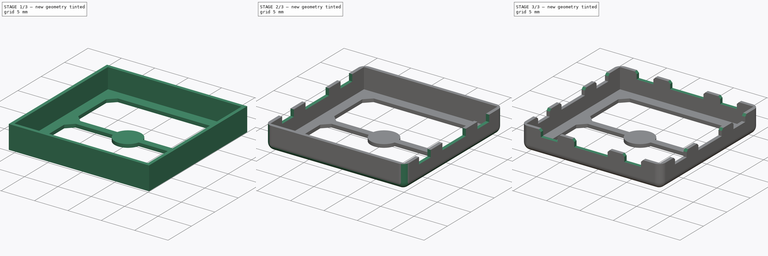
[diagram: build sequence overview — one tinted view per stage of 3, left to right]
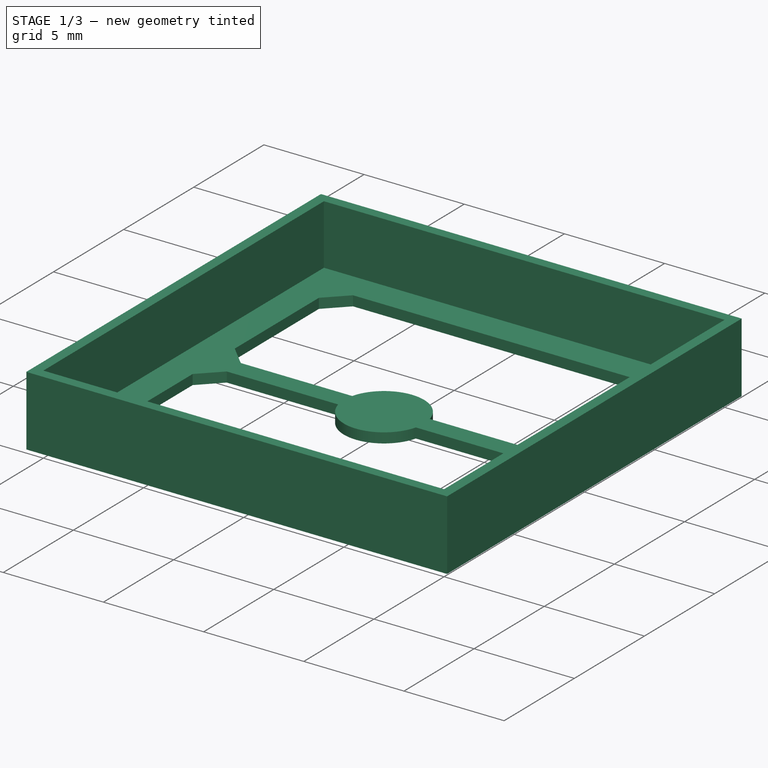
[diagram: stage 1 of 3 — iso view after this stage's code; geometry added in this stage tinted green]
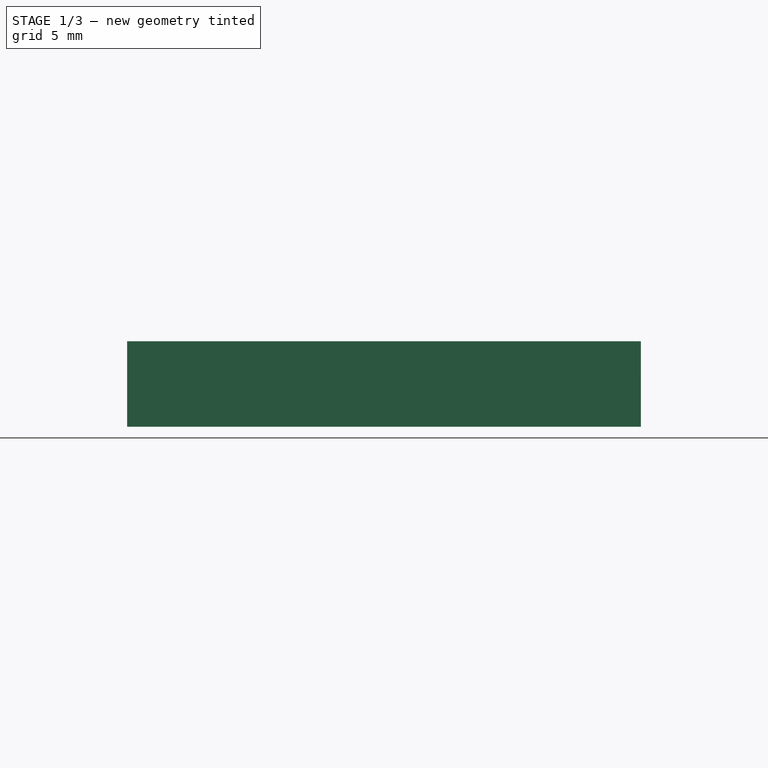
[diagram: stage 1 of 3 — front view after this stage's code; geometry added in this stage tinted green]
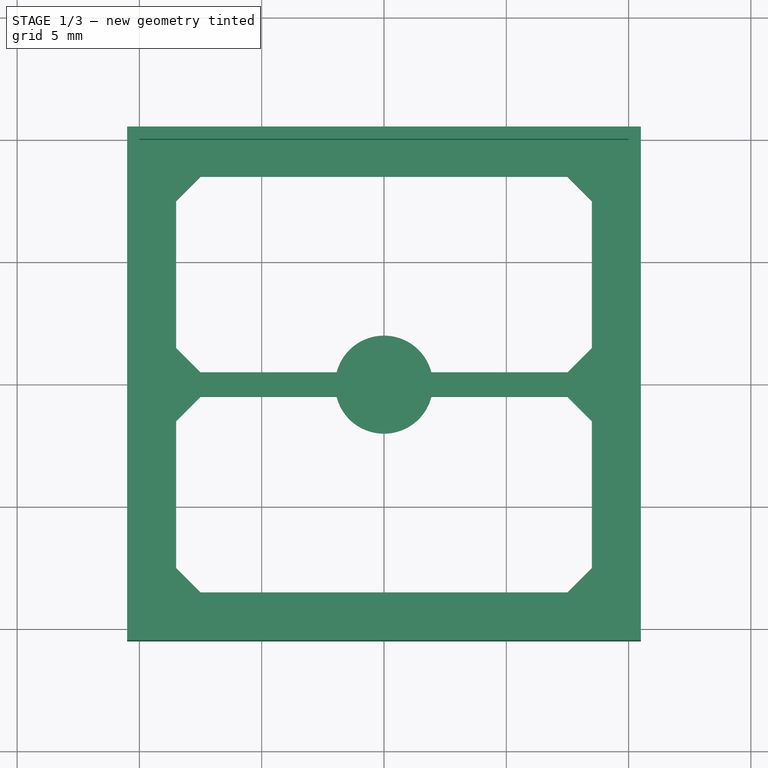
[diagram: stage 1 of 3 — top view after this stage's code; geometry added in this stage tinted green]
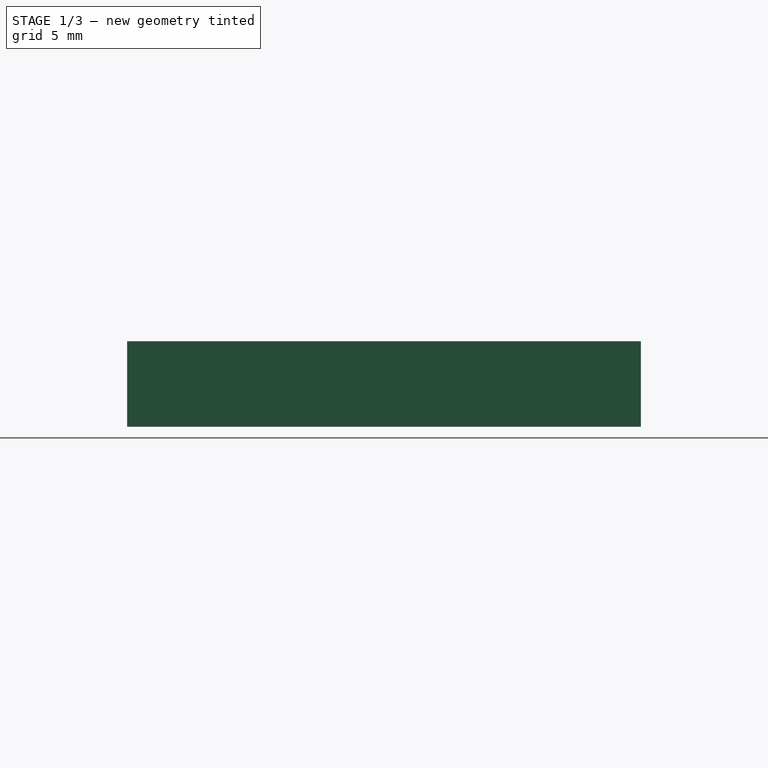
[diagram: stage 1 of 3 — right view after this stage's code; geometry added in this stage tinted green]
FCSTD DOCUMENT  (FreeCAD 0.18R4 (GitTag))
Label: WE_36103205
License: All rights reserved
LicenseURL: http://en.wikipedia.org/wiki/All_rights_reserved
objects: Sketcher::SketchObject×4, PartDesign::Pocket×3, PartDesign::Pad×1, PartDesign::Fillet×1, PartDesign::Chamfer×1, PartDesign::Body×1
note: 15 computed .brp shape members not serialized (recipe doc carries the construction recipe); baked Part::Feature solids carry a one-line shape summary decoded from their .brp

FEATURE [Sketcher::SketchObject] Sketch  label="blindage"
  MapMode = 5
  Support = -> [XY_Plane]
  sketch-geometry (24):
    g0: LineSegment StartX=-10.5 StartY=10.5 StartZ=0 EndX=10.5 EndY=10.5 EndZ=0
    g1: LineSegment StartX=10.5 StartY=10.5 StartZ=0 EndX=10.5 EndY=-10.5 EndZ=0
    g2: LineSegment StartX=10.5 StartY=-10.5 StartZ=0 EndX=-10.5 EndY=-10.5 EndZ=0
    g3: LineSegment StartX=-10.5 StartY=-10.5 StartZ=0 EndX=-10.5 EndY=10.5 EndZ=0
    g4: LineSegment StartX=-8.5 StartY=7.5 StartZ=0 EndX=-7.5 EndY=8.5 EndZ=0
    g5: LineSegment StartX=-8.5 StartY=7.5 StartZ=0 EndX=-8.5 EndY=1.5 EndZ=0
    g6: LineSegment StartX=-8.5 StartY=1.5 StartZ=0 EndX=-7.5 EndY=0.5 EndZ=0
    g7: LineSegment StartX=-7.5 StartY=0.5 StartZ=0 EndX=-1.93649 EndY=0.5 EndZ=0
    g8: LineSegment StartX=-7.5 StartY=8.5 StartZ=0 EndX=7.5 EndY=8.5 EndZ=0
    g9: LineSegment StartX=7.5 StartY=8.5 StartZ=0 EndX=8.5 EndY=7.5 EndZ=0
    g10: LineSegment StartX=8.5 StartY=7.5 StartZ=0 EndX=8.5 EndY=1.5 EndZ=0
    g11: LineSegment StartX=8.5 StartY=1.5 StartZ=0 EndX=7.5 EndY=0.5 EndZ=0
    g12: LineSegment StartX=7.5 StartY=0.5 StartZ=0 EndX=1.93649 EndY=0.5 EndZ=0
    g13: LineSegment StartX=-8.5 StartY=-7.5 StartZ=0 EndX=-7.5 EndY=-8.5 EndZ=0
    g14: LineSegment StartX=-8.5 StartY=-7.5 StartZ=0 EndX=-8.5 EndY=-1.5 EndZ=0
    g15: LineSegment StartX=-8.5 StartY=-1.5 StartZ=0 EndX=-7.5 EndY=-0.5 EndZ=0
    g16: LineSegment StartX=-7.5 StartY=-0.5 StartZ=0 EndX=-1.93649 EndY=-0.5 EndZ=0
    g17: LineSegment StartX=-7.5 StartY=-8.5 StartZ=0 EndX=7.5 EndY=-8.5 EndZ=0
    g18: LineSegment StartX=7.5 StartY=-8.5 StartZ=0 EndX=8.5 EndY=-7.5 EndZ=0
    g19: LineSegment StartX=8.5 StartY=-7.5 StartZ=0 EndX=8.5 EndY=-1.5 EndZ=0
    g20: LineSegment StartX=8.5 StartY=-1.5 StartZ=0 EndX=7.5 EndY=-0.5 EndZ=0
    g21: LineSegment StartX=7.5 StartY=-0.5 StartZ=0 EndX=1.93649 EndY=-0.5 EndZ=0
    g22: ArcOfCircle CenterX=0 CenterY=0 CenterZ=0 NormalX=0 NormalY=0 NormalZ=1 AngleXU=0 Radius=2 StartAngle=0.25268 EndAngle=2.88891
    g23: ArcOfCircle CenterX=0 CenterY=0 CenterZ=0 NormalX=0 NormalY=0 NormalZ=1 AngleXU=0 Radius=2 StartAngle=3.39427 EndAngle=6.03051
  constraints (72):
    c: Coincident(g0,g1)
    c: Coincident(g1,g2)
    c: Coincident(g2,g3)
    c: Coincident(g3,g0)
    c: Horizontal(g0)
    c: Horizontal(g2)
    c: Vertical(g1)
    c: Vertical(g3)
    c: DistanceX(g0,g-1) = 10.5
    c: DistanceY(g-1,g0) = 10.5
    c: DistanceY(g1,g1) = 21
    c: Equal(g1,g0)
    c: Coincident(g4,g5)
    c: Vertical(g5)
    c: Angle(g4,g-2) = 0.785398
    c: Coincident(g5,g6)
    c: Coincident(g6,g7)
    c: Horizontal(g7)
    c: Coincident(g4,g8)
    c: Horizontal(g8)
    c: Coincident(g8,g9)
    c: Coincident(g9,g10)
    c: Coincident(g10,g11)
    c: Coincident(g11,g12)
    c: Horizontal(g12)
    c: DistanceX(g8,g8) = 15
    c: DistanceY(g4,g0) = 2
    c: DistanceY(g-1,g7) = 0.5
    c: DistanceY(g-1,g12) = 0.5
    c: DistanceX(g0,g4) = 2
    c: Vertical(g10)
    c: DistanceX(g10,g0) = 2
    c: Equal(g6,g4)
    c: Equal(g9,g11)
    c: Equal(g4,g9)
    c: Angle(g6) = -0.785398
    c: Angle(g9) = -0.785398
    c: Angle(g11) = -2.35619
    c: Coincident(g13,g14)
    c: Vertical(g14)
    c: Coincident(g14,g15)
    c: Coincident(g15,g16)
    c: Horizontal(g16)
    c: Coincident(g13,g17)
    c: Horizontal(g17)
    c: Coincident(g17,g18)
    c: Coincident(g18,g19)
    c: Coincident(g19,g20)
    c: Coincident(g20,g21)
    c: Horizontal(g21)
    c: Vertical(g19)
    c: Equal(g15,g13)
    c: Equal(g18,g20)
    c: Equal(g13,g18)
    c: Angle(g15) = 0.785398
    c: Angle(g18) = 0.785398
    c: Angle(g20) = 2.35619
    c: DistanceX(g2,g14) = 2
    c: DistanceX(g18,g1) = 2
    c: DistanceY(g1,g17) = 2
    c: Angle(g13) = -0.785398
    c: DistanceX(g17,g17) = 15
    c: DistanceY(g20,g-1) = 0.5
    c: Coincident(g22,g-1)
    c: Coincident(g22,g7)
    c: Coincident(g22,g12)
    c: Coincident(g23,g16)
    c: Coincident(g23,g21)
    c: Equal(g7,g16)
    c: Coincident(g23,g22)
    c: Radius(g22) = 2
    c: Radius(g23) = 2
FEATURE [PartDesign::Pad] Pad
  Length = 3.5
  Length2 = 100
  Profile = -> Sketch
  Type = 0
FEATURE [Sketcher::SketchObject] CopySketch001
  Placement = pos=(0,0,3.5) rot=(0,0,1;0rad)
  sketch-geometry (4):
    g0: LineSegment StartX=-10 StartY=10 StartZ=0 EndX=10 EndY=10 EndZ=0
    g1: LineSegment StartX=10 StartY=10 StartZ=0 EndX=10 EndY=-10 EndZ=0
    g2: LineSegment StartX=10 StartY=-10 StartZ=0 EndX=-10 EndY=-10 EndZ=0
    g3: LineSegment StartX=-10 StartY=-10 StartZ=0 EndX=-10 EndY=10 EndZ=0
  constraints (12):
    c: Coincident(g0,g1)
    c: Coincident(g1,g2)
    c: Coincident(g2,g3)
    c: Coincident(g3,g0)
    c: Horizontal(g0)
    c: Horizontal(g2)
    c: Vertical(g1)
    c: Vertical(g3)
    c: DistanceX(g0,g0) = 20
    c: DistanceY(g3,g3) = 20
    c: DistanceX(g0,g-1) = 10
    c: DistanceY(g-1,g0) = 10
FEATURE [PartDesign::Pocket] Pocket
  BaseFeature = -> Pad
  Length = 3
  Length2 = 100
  Profile = -> CopySketch001
  Type = 0
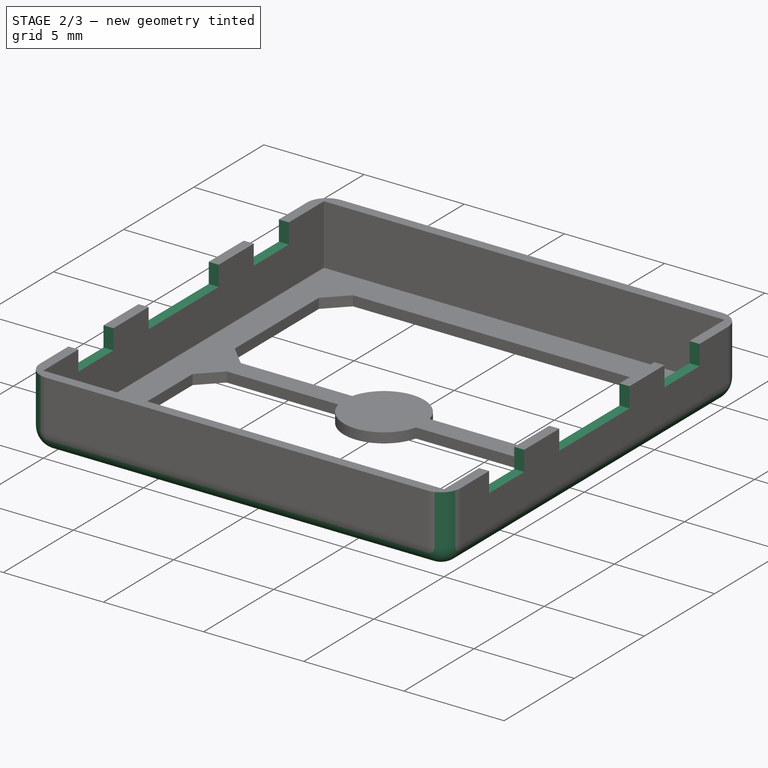
[diagram: stage 2 of 3 — iso view after this stage's code; geometry added in this stage tinted green]
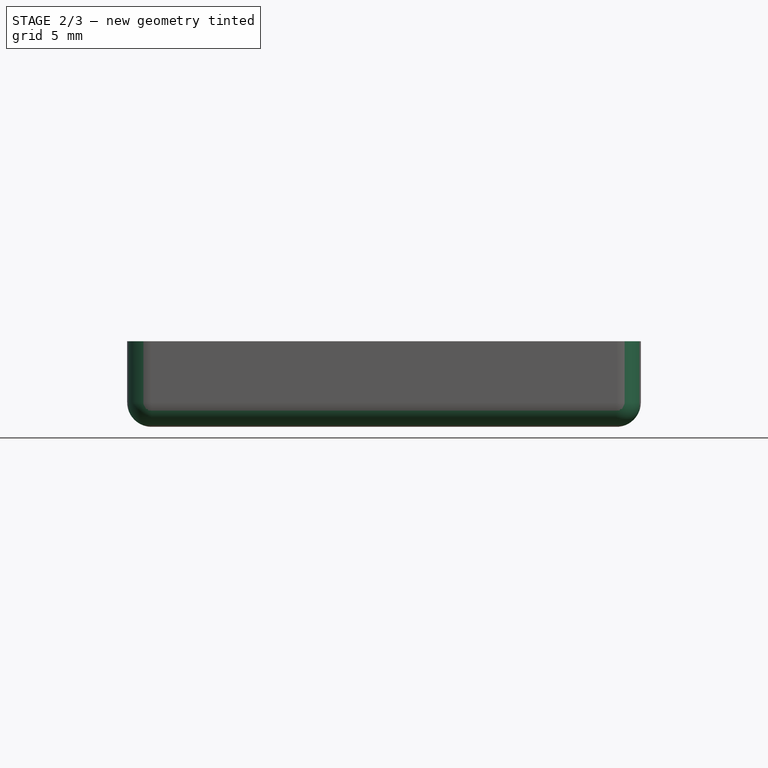
[diagram: stage 2 of 3 — front view after this stage's code; geometry added in this stage tinted green]
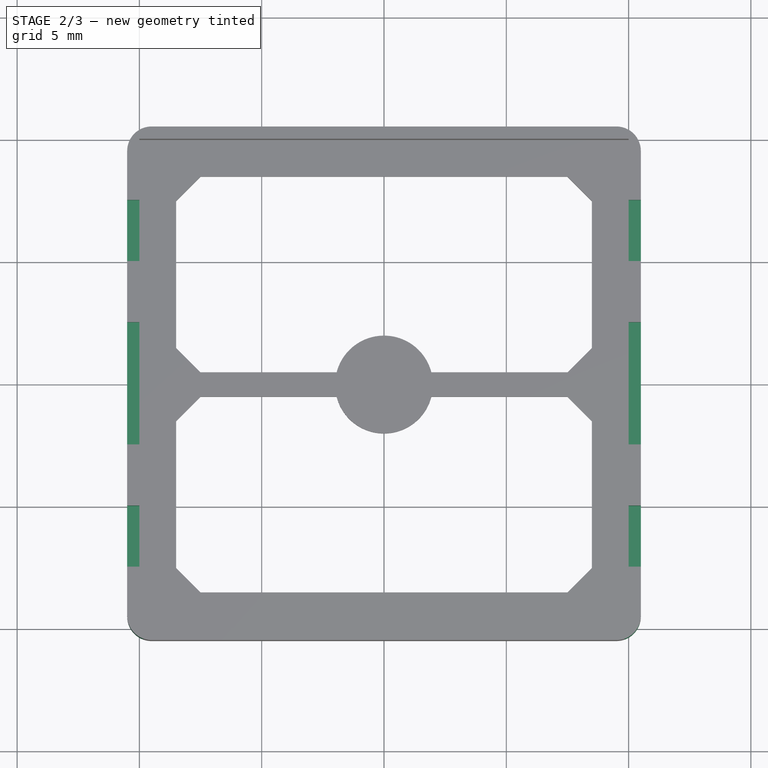
[diagram: stage 2 of 3 — top view after this stage's code; geometry added in this stage tinted green]
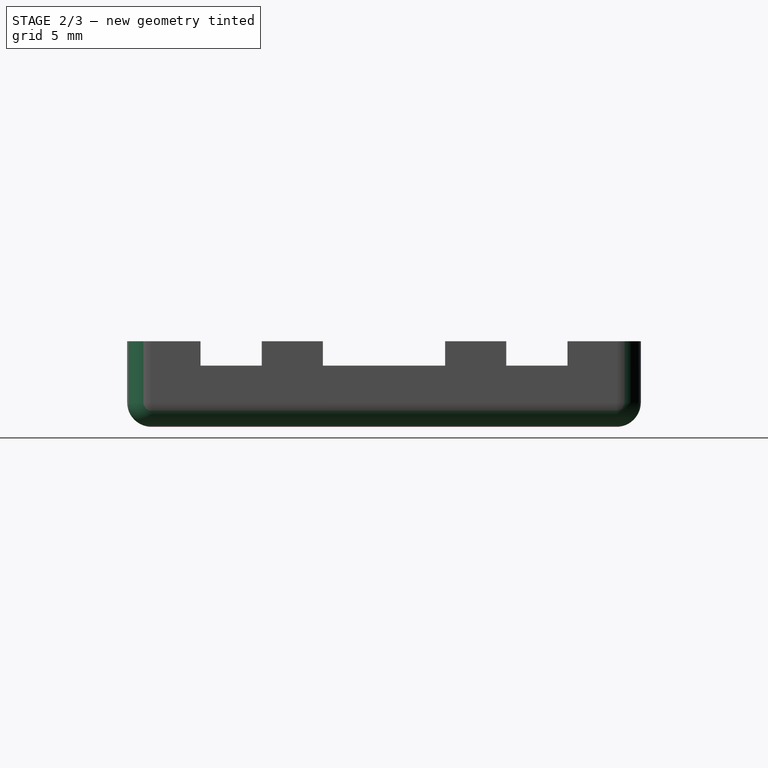
[diagram: stage 2 of 3 — right view after this stage's code; geometry added in this stage tinted green]
FEATURE [PartDesign::Fillet] Fillet
  Base = -> Pocket [Edge1,Edge2,Edge8,Edge5,Edge11,Edge6,Edge3,Edge9]
  BaseFeature = -> Pocket
  Radius = 1
FEATURE [Sketcher::SketchObject] Sketch001
  ExternalGeometry = -> [Fillet]
  MapMode = 5
  Placement = pos=(10.5,0,0) rot=(0.57735,0.57735,0.57735;2.0944rad)
  Support = -> [Fillet]
  sketch-geometry (12):
    g0: LineSegment StartX=-7.5 StartY=4.5 StartZ=0 EndX=-5 EndY=4.5 EndZ=0
    g1: LineSegment StartX=-5 StartY=4.5 StartZ=0 EndX=-5 EndY=2.5 EndZ=0
    g2: LineSegment StartX=-5 StartY=2.5 StartZ=0 EndX=-7.5 EndY=2.5 EndZ=0
    g3: LineSegment StartX=-7.5 StartY=2.5 StartZ=0 EndX=-7.5 EndY=4.5 EndZ=0
    g4: LineSegment StartX=-2.5 StartY=4.5 StartZ=0 EndX=2.5 EndY=4.5 EndZ=0
    g5: LineSegment StartX=2.5 StartY=4.5 StartZ=0 EndX=2.5 EndY=2.5 EndZ=0
    g6: LineSegment StartX=2.5 StartY=2.5 StartZ=0 EndX=-2.5 EndY=2.5 EndZ=0
    g7: LineSegment StartX=-2.5 StartY=2.5 StartZ=0 EndX=-2.5 EndY=4.5 EndZ=0
    g8: LineSegment StartX=5 StartY=4.5 StartZ=0 EndX=7.5 EndY=4.5 EndZ=0
    g9: LineSegment StartX=7.5 StartY=4.5 StartZ=0 EndX=7.5 EndY=2.5 EndZ=0
    g10: LineSegment StartX=7.5 StartY=2.5 StartZ=0 EndX=5 EndY=2.5 EndZ=0
    g11: LineSegment StartX=5 StartY=2.5 StartZ=0 EndX=5 EndY=4.5 EndZ=0
  constraints (36):
    c: Coincident(g0,g1)
    c: Coincident(g1,g2)
    c: Coincident(g2,g3)
    c: Coincident(g3,g0)
    c: Horizontal(g0)
    c: Horizontal(g2)
    c: Vertical(g1)
    c: Vertical(g3)
    c: Coincident(g4,g5)
    c: Coincident(g5,g6)
    c: Coincident(g6,g7)
    c: Coincident(g7,g4)
    c: Horizontal(g4)
    c: Horizontal(g6)
    c: Vertical(g5)
    c: Vertical(g7)
    c: Coincident(g8,g9)
    c: Coincident(g9,g10)
    c: Coincident(g10,g11)
    c: Coincident(g11,g8)
    c: Horizontal(g8)
    c: Horizontal(g10)
    c: Vertical(g9)
    c: Vertical(g11)
    c: Equal(g0,g8)
    c: DistanceX(g-3,g2) = 3
    c: DistanceX(g9,g-4) = 3
    c: DistanceX(g0,g4) = 2.5
    c: DistanceX(g4,g8) = 2.5
    c: DistanceX(g4,g4) = 5
    c: DistanceY(g2,g-3) = 1
    c: DistanceY(g10,g-4) = 1
    c: DistanceY(g6,g-3) = 1
    c: DistanceY(g-3,g0) = 1
    c: DistanceY(g-3,g4) = 1
    c: DistanceY(g-4,g8) = 1
FEATURE [PartDesign::Pocket] Pocket001
  BaseFeature = -> Fillet
  Length = 5
  Length2 = 100
  Profile = -> Sketch001
  Type = 1
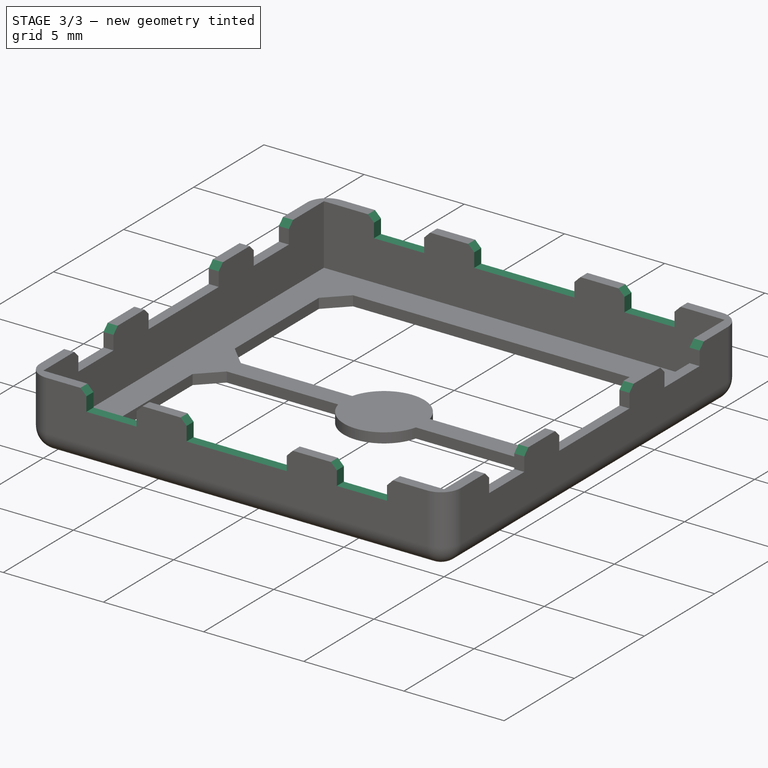
[diagram: stage 3 of 3 — iso view after this stage's code; geometry added in this stage tinted green]
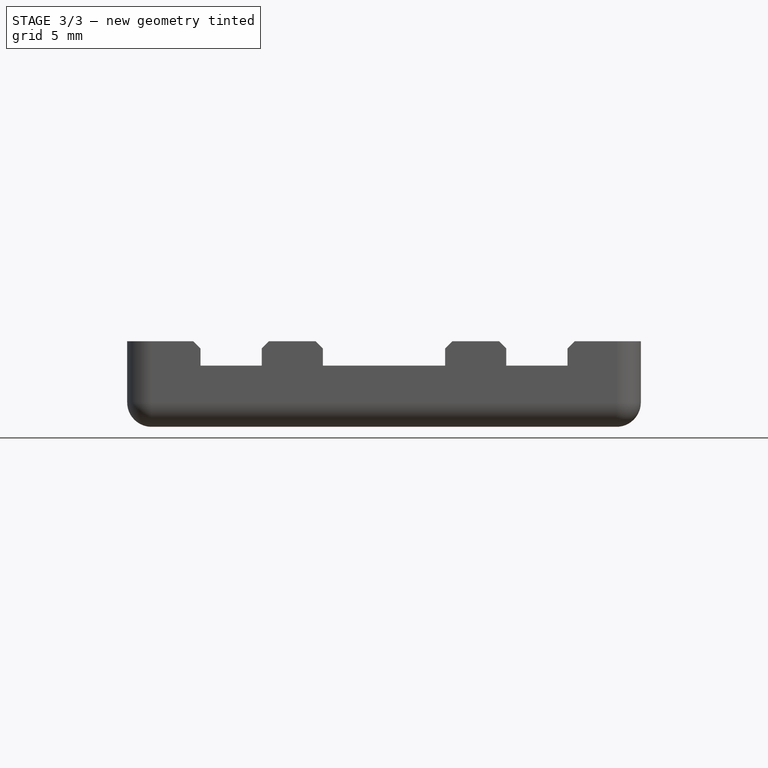
[diagram: stage 3 of 3 — front view after this stage's code; geometry added in this stage tinted green]
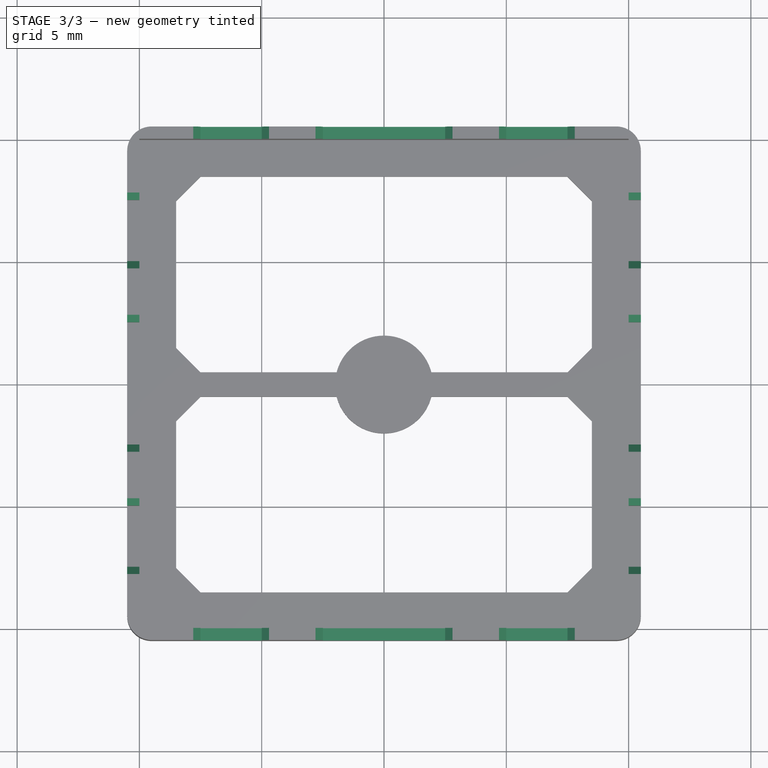
[diagram: stage 3 of 3 — top view after this stage's code; geometry added in this stage tinted green]
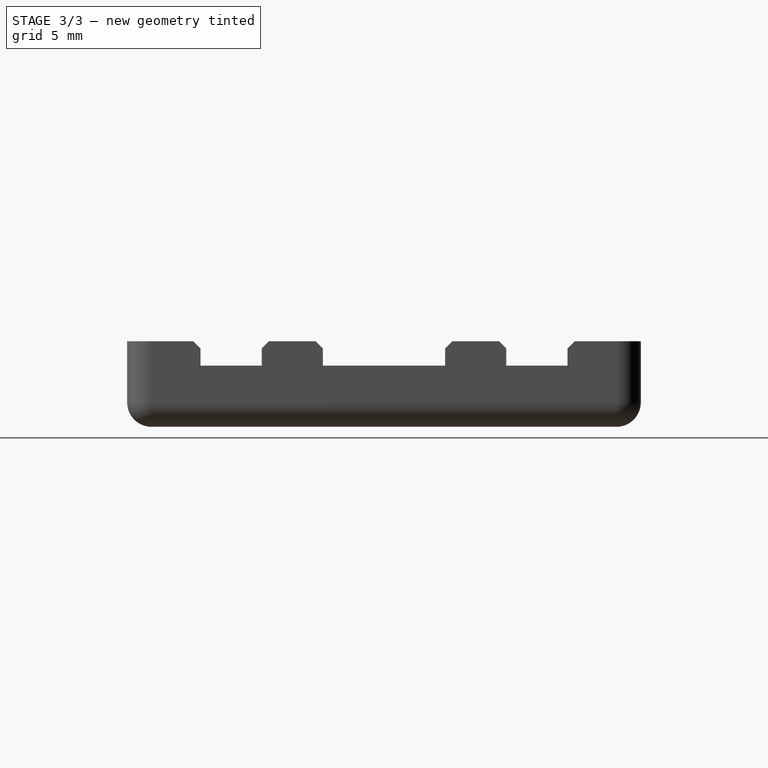
[diagram: stage 3 of 3 — right view after this stage's code; geometry added in this stage tinted green]
FEATURE [Sketcher::SketchObject] Sketch002
  ExternalGeometry = -> [Pocket001]
  MapMode = 5
  Placement = pos=(0,10.5,0) rot=(0,0.707107,0.707107;3.14159rad)
  Support = -> [Pocket001]
  sketch-geometry (12):
    g0: LineSegment StartX=-7.5 StartY=4.5 StartZ=0 EndX=-5 EndY=4.5 EndZ=0
    g1: LineSegment StartX=-5 StartY=4.5 StartZ=0 EndX=-5 EndY=2.5 EndZ=0
    g2: LineSegment StartX=-5 StartY=2.5 StartZ=0 EndX=-7.5 EndY=2.5 EndZ=0
    g3: LineSegment StartX=-7.5 StartY=2.5 StartZ=0 EndX=-7.5 EndY=4.5 EndZ=0
    g4: LineSegment StartX=-2.5 StartY=4.5 StartZ=0 EndX=2.5 EndY=4.5 EndZ=0
    g5: LineSegment StartX=2.5 StartY=4.5 StartZ=0 EndX=2.5 EndY=2.5 EndZ=0
    g6: LineSegment StartX=2.5 StartY=2.5 StartZ=0 EndX=-2.5 EndY=2.5 EndZ=0
    g7: LineSegment StartX=-2.5 StartY=2.5 StartZ=0 EndX=-2.5 EndY=4.5 EndZ=0
    g8: LineSegment StartX=5 StartY=4.5 StartZ=0 EndX=7.5 EndY=4.5 EndZ=0
    g9: LineSegment StartX=7.5 StartY=4.5 StartZ=0 EndX=7.5 EndY=2.5 EndZ=0
    g10: LineSegment StartX=7.5 StartY=2.5 StartZ=0 EndX=5 EndY=2.5 EndZ=0
    g11: LineSegment StartX=5 StartY=2.5 StartZ=0 EndX=5 EndY=4.5 EndZ=0
  constraints (36):
    c: Coincident(g0,g1)
    c: Coincident(g1,g2)
    c: Coincident(g2,g3)
    c: Coincident(g3,g0)
    c: Horizontal(g0)
    c: Horizontal(g2)
    c: Vertical(g1)
    c: Vertical(g3)
    c: Coincident(g4,g5)
    c: Coincident(g5,g6)
    c: Coincident(g6,g7)
    c: Coincident(g7,g4)
    c: Horizontal(g4)
    c: Horizontal(g6)
    c: Vertical(g5)
    c: Vertical(g7)
    c: Coincident(g8,g9)
    c: Coincident(g9,g10)
    c: Coincident(g10,g11)
    c: Coincident(g11,g8)
    c: Horizontal(g8)
    c: Horizontal(g10)
    c: Vertical(g9)
    c: Vertical(g11)
    c: Equal(g8,g0)
    c: DistanceX(g-3,g2) = 3
    c: DistanceX(g9,g-4) = 3
    c: DistanceX(g0,g4) = 2.5
    c: DistanceX(g4,g8) = 2.5
    c: DistanceX(g4,g4) = 5
    c: DistanceY(g2,g-3) = 1
    c: DistanceY(g6,g-3) = 1
    c: DistanceY(g9,g-4) = 1
    c: DistanceY(g-3,g0) = 1
    c: DistanceY(g-3,g4) = 1
    c: DistanceY(g-4,g8) = 1
FEATURE [PartDesign::Pocket] Pocket002
  BaseFeature = -> Pocket001
  Length = 5
  Length2 = 100
  Profile = -> Sketch002
  Type = 1
FEATURE [PartDesign::Chamfer] Chamfer
  Base = -> Pocket002 [Edge215,Edge216,Edge219,Edge220,Edge210,Edge212,Edge250,Edge251,Edge254,Edge255,Edge160,Edge158,Edge155,Edge154,Edge151,Edge150,Edge54,Edge36,Edge26,Edge29,Edge44,Edge37,Edge52,Edge45]
  BaseFeature = -> Pocket002
  Size = 0.3
FEATURE [PartDesign::Body] Body
  Group = -> [Sketch,Pad,Pocket,Fillet,Sketch001,Pocket001,Sketch002,Pocket002,Chamfer]
  Origin = -> Origin
  Tip = -> Chamfer
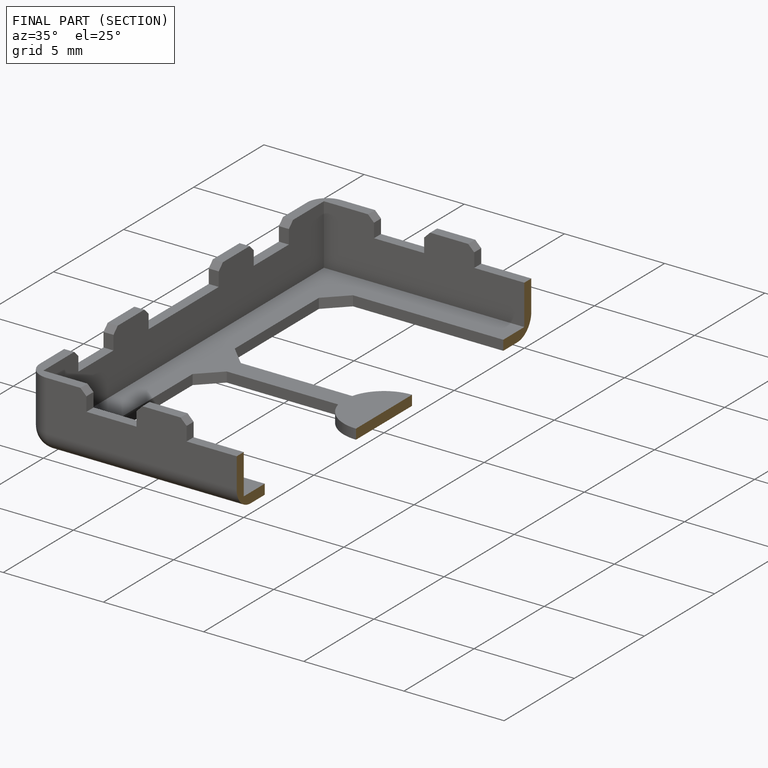
[diagram: finished part — half-section view (interior)]
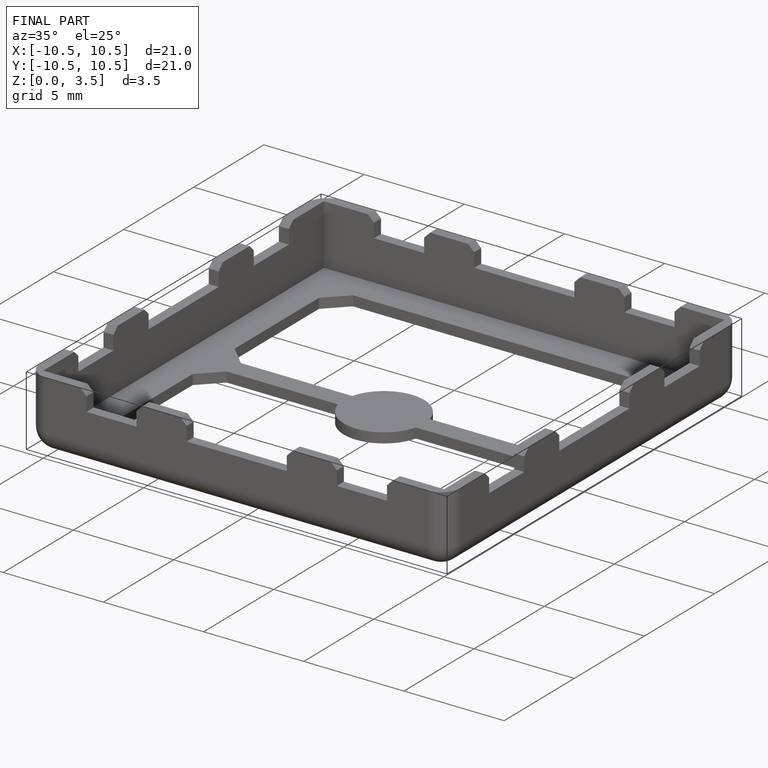
[diagram: finished part — iso view with bounding-box wireframe]
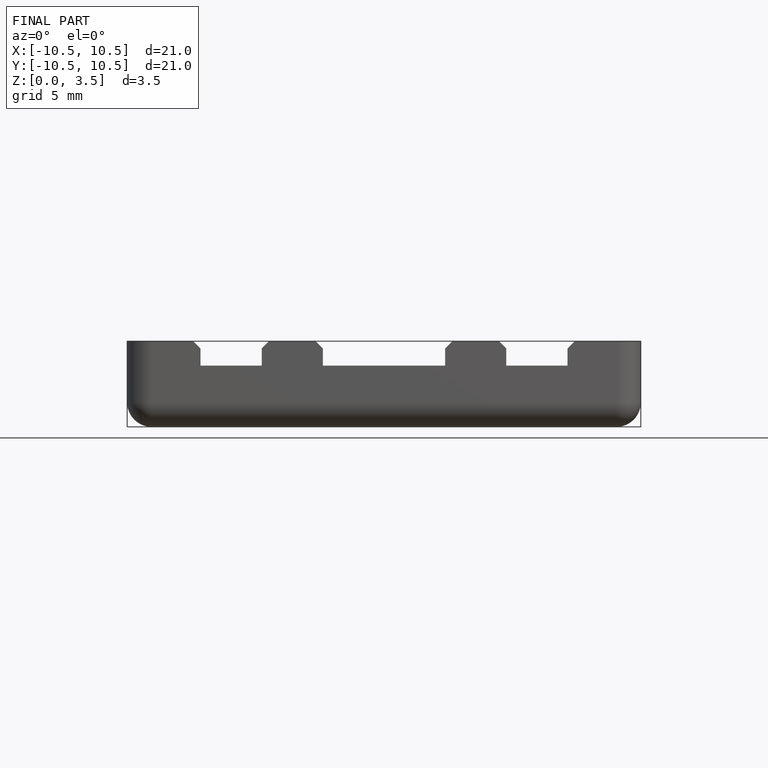
[diagram: finished part — front view with bounding-box wireframe]
